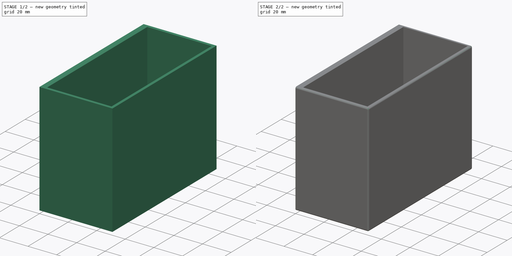
[diagram: build sequence overview — one tinted view per stage of 2, left to right]
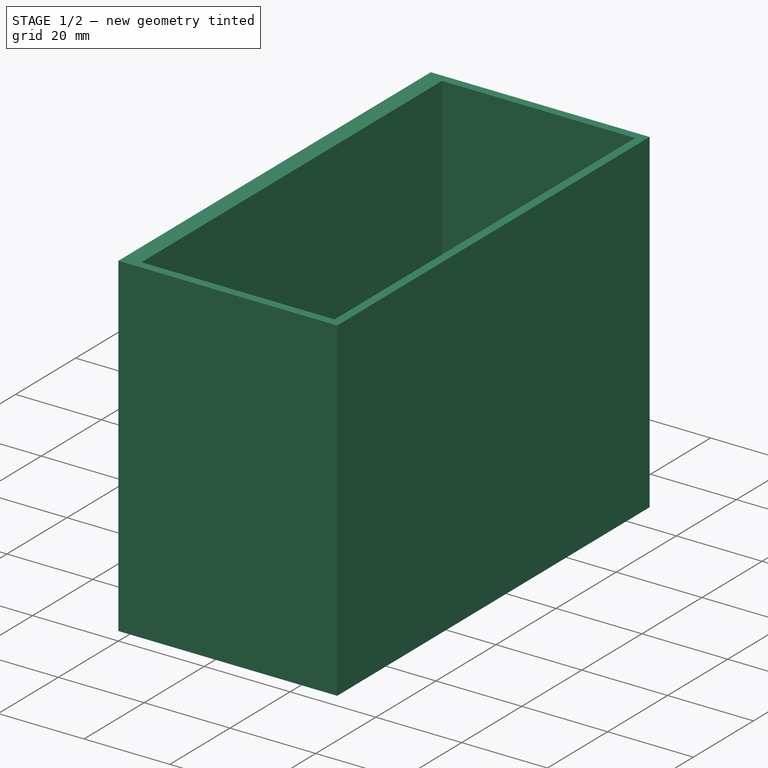
[diagram: stage 1 of 2 — iso view after this stage's code; geometry added in this stage tinted green]
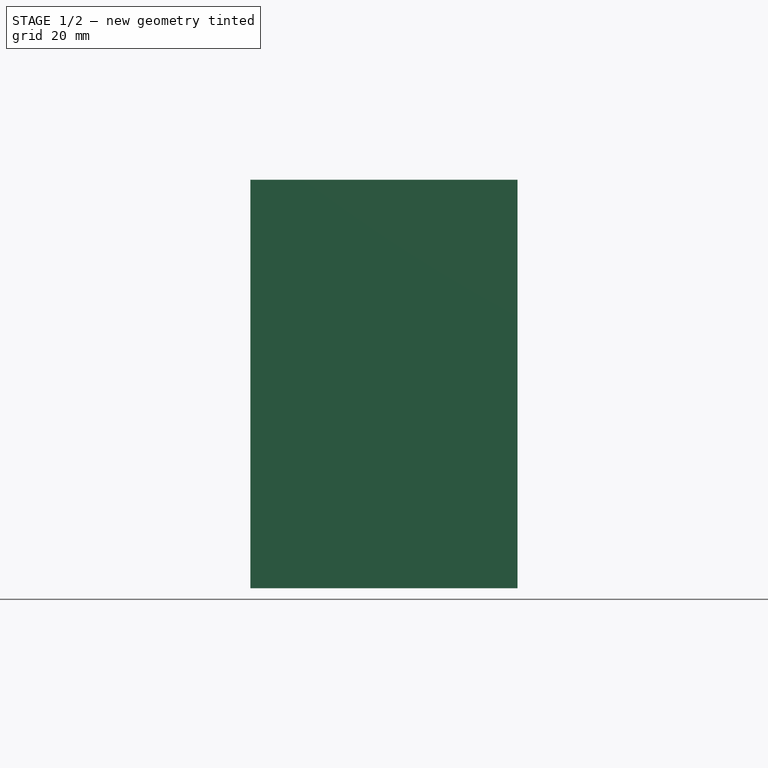
[diagram: stage 1 of 2 — front view after this stage's code; geometry added in this stage tinted green]
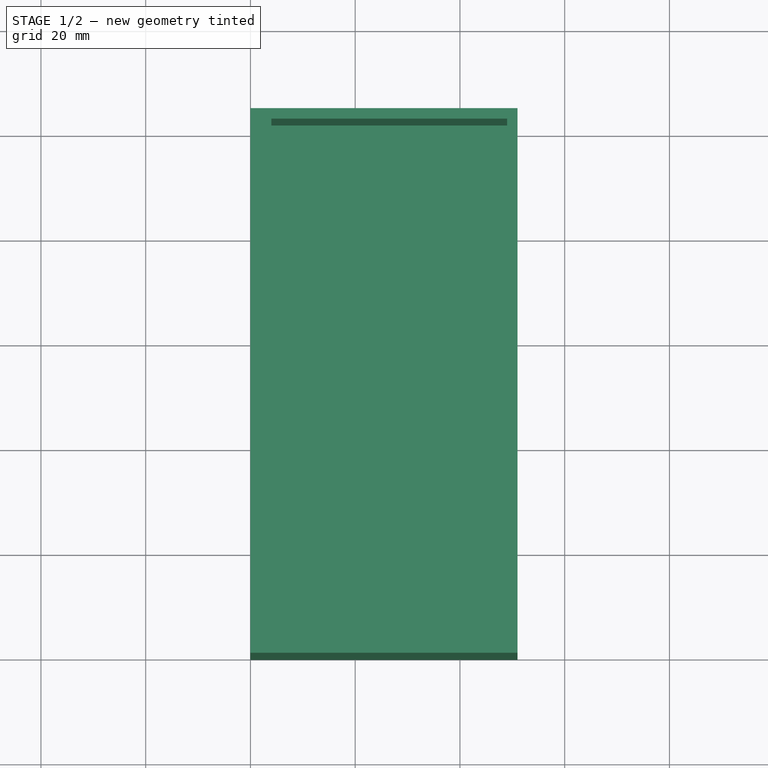
[diagram: stage 1 of 2 — top view after this stage's code; geometry added in this stage tinted green]
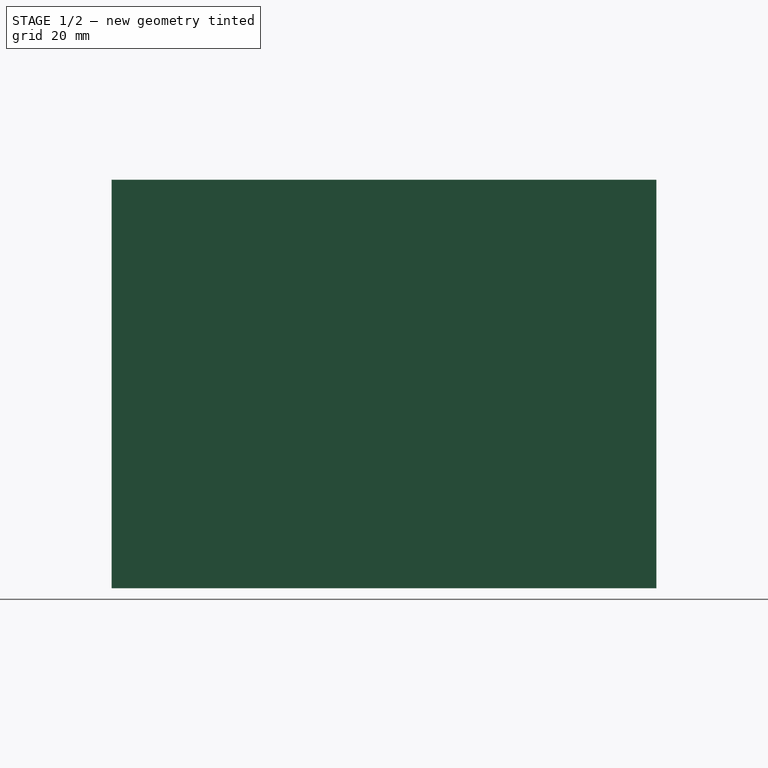
[diagram: stage 1 of 2 — right view after this stage's code; geometry added in this stage tinted green]
FCSTD DOCUMENT  (FreeCAD 0.18R)
Label: whiteboard_marker
License: All rights reserved
LicenseURL: http://en.wikipedia.org/wiki/All_rights_reserved
objects: Sketcher::SketchObject×3, PartDesign::Pocket×2, PartDesign::Pad×1, PartDesign::Fillet×1, PartDesign::Body×1
note: 11 computed .brp shape members not serialized (recipe doc carries the construction recipe); baked Part::Feature solids carry a one-line shape summary decoded from their .brp

FEATURE [Sketcher::SketchObject] Sketch
  MapMode = 5
  Support = -> [XY_Plane]
  sketch-geometry (4):
    g0: LineSegment StartX=0 StartY=104 StartZ=0 EndX=51 EndY=104 EndZ=0
    g1: LineSegment StartX=51 StartY=104 StartZ=0 EndX=51 EndY=0 EndZ=0
    g2: LineSegment StartX=51 StartY=0 StartZ=0 EndX=0 EndY=0 EndZ=0
    g3: LineSegment StartX=0 StartY=0 StartZ=0 EndX=0 EndY=104 EndZ=0
  constraints (11):
    c: Coincident(g0,g1)
    c: Coincident(g1,g2)
    c: Coincident(g2,g3)
    c: Coincident(g3,g0)
    c: Horizontal(g0)
    c: Horizontal(g2)
    c: Vertical(g1)
    c: Vertical(g3)
    c: DistanceX(g0,g0) = 51
    c: DistanceY(g1,g1) = 104
    c: Coincident(g-1,g2)
FEATURE [PartDesign::Pad] Pad
  Length = 78
  Length2 = 100
  Profile = -> Sketch
  Refine = true
  Type = 0
FEATURE [Sketcher::SketchObject] Sketch001
  MapMode = 5
  Placement = pos=(0,0,78) rot=(0,0,1;0rad)
  Support = -> [Pad]
  sketch-geometry (4):
    g0: LineSegment StartX=4 StartY=102 StartZ=0 EndX=49 EndY=102 EndZ=0
    g1: LineSegment StartX=49 StartY=102 StartZ=0 EndX=49 EndY=2 EndZ=0
    g2: LineSegment StartX=49 StartY=2 StartZ=0 EndX=4 EndY=2 EndZ=0
    g3: LineSegment StartX=4 StartY=2 StartZ=0 EndX=4 EndY=102 EndZ=0
  constraints (12):
    c: Coincident(g0,g1)
    c: Coincident(g1,g2)
    c: Coincident(g2,g3)
    c: Coincident(g3,g0)
    c: Horizontal(g0)
    c: Horizontal(g2)
    c: Vertical(g1)
    c: Vertical(g3)
    c: DistanceX(g-1,g2) = 4
    c: DistanceY(g-1,g2) = 2
    c: DistanceX(g0,g0) = 45
    c: DistanceY(g1,g1) = 100
FEATURE [PartDesign::Pocket] Pocket
  BaseFeature = -> Pad
  Length = 75
  Length2 = 100
  Profile = -> Sketch001
  Refine = true
  Type = 0
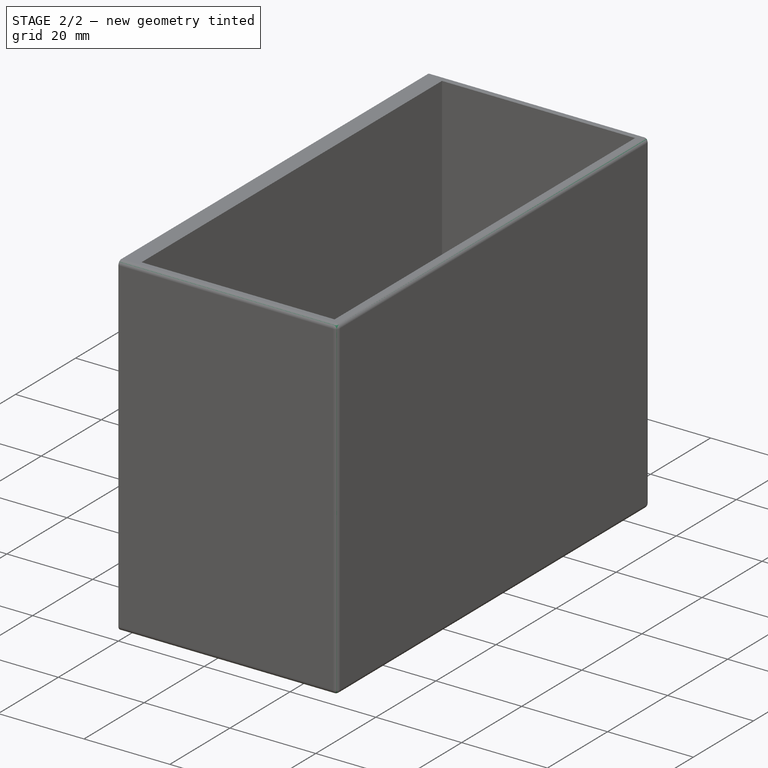
[diagram: stage 2 of 2 — iso view after this stage's code; geometry added in this stage tinted green]
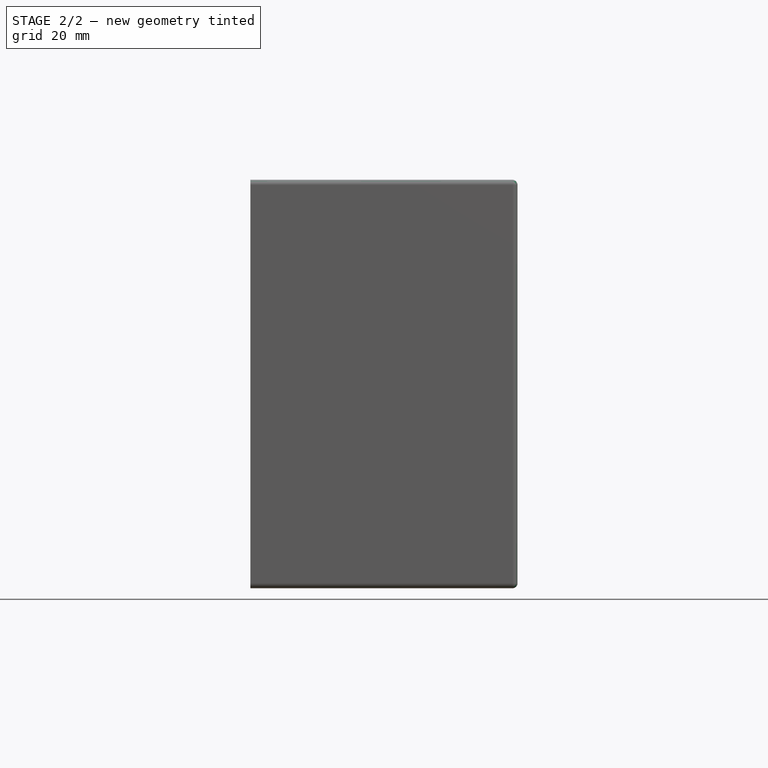
[diagram: stage 2 of 2 — front view after this stage's code; geometry added in this stage tinted green]
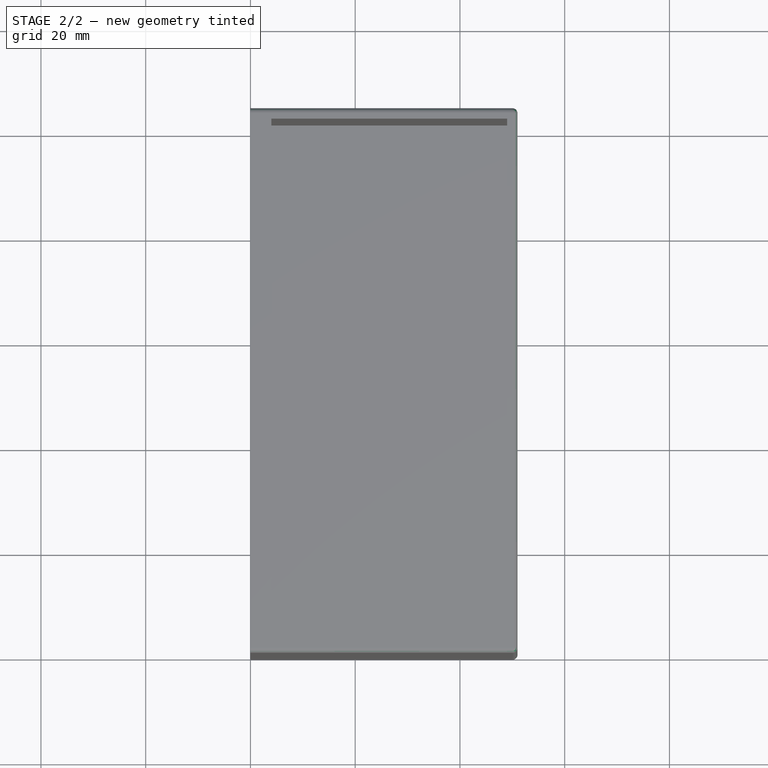
[diagram: stage 2 of 2 — top view after this stage's code; geometry added in this stage tinted green]
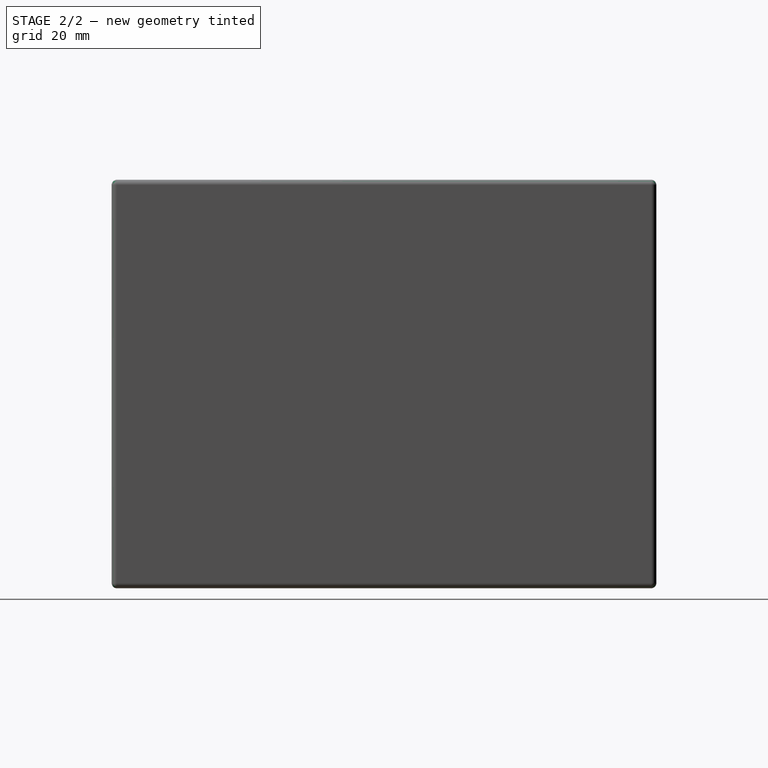
[diagram: stage 2 of 2 — right view after this stage's code; geometry added in this stage tinted green]
FEATURE [PartDesign::Fillet] Fillet
  Base = -> Pocket [Edge8,Edge2,Edge9,Edge11,Edge10,Edge12,Edge4,Edge3]
  BaseFeature = -> Pocket
  Radius = 1
FEATURE [Sketcher::SketchObject] Sketch002
  MapMode = 5
  Placement = pos=(0,0,0) rot=(0.57735,-0.57735,-0.57735;2.0944rad)
  Support = -> [Fillet]
  sketch-geometry (24):
    g0: LineSegment StartX=-94.5 StartY=63 StartZ=0 EndX=-74 EndY=63 EndZ=0
    g1: LineSegment StartX=-74 StartY=63 StartZ=0 EndX=-74 EndY=56.5 EndZ=0
    g2: LineSegment StartX=-74 StartY=56.5 StartZ=0 EndX=-94.5 EndY=56.5 EndZ=0
    g3: LineSegment StartX=-94.5 StartY=56.5 StartZ=0 EndX=-94.5 EndY=63 EndZ=0
    g4: LineSegment StartX=-94.5 StartY=26.5 StartZ=0 EndX=-74 EndY=26.5 EndZ=0
    g5: LineSegment StartX=-74 StartY=26.5 StartZ=0 EndX=-74 EndY=20 EndZ=0
    g6: LineSegment StartX=-74 StartY=20 StartZ=0 EndX=-94.5 EndY=20 EndZ=0
    g7: LineSegment StartX=-94.5 StartY=20 StartZ=0 EndX=-94.5 EndY=26.5 EndZ=0
    g8: LineSegment StartX=-31.5 StartY=63 StartZ=0 EndX=-11 EndY=63 EndZ=0
    g9: LineSegment StartX=-11 StartY=63 StartZ=0 EndX=-11 EndY=56.5 EndZ=0
    g10: LineSegment StartX=-11 StartY=56.5 StartZ=0 EndX=-31.5 EndY=56.5 EndZ=0
    g11: LineSegment StartX=-31.5 StartY=56.5 StartZ=0 EndX=-31.5 EndY=63 EndZ=0
    g12: LineSegment StartX=-31.5 StartY=26.5 StartZ=0 EndX=-11 EndY=26.5 EndZ=0
    g13: LineSegment StartX=-11 StartY=26.5 StartZ=0 EndX=-11 EndY=20 EndZ=0
    g14: LineSegment StartX=-11 StartY=20 StartZ=0 EndX=-31.5 EndY=20 EndZ=0
    g15: LineSegment StartX=-31.5 StartY=20 StartZ=0 EndX=-31.5 EndY=26.5 EndZ=0
    g16: LineSegment StartX=-63.5265 StartY=63 StartZ=0 EndX=-43.0265 EndY=63 EndZ=0
    g17: LineSegment StartX=-43.0265 StartY=63 StartZ=0 EndX=-43.0265 EndY=56.5 EndZ=0
    g18: LineSegment StartX=-43.0265 StartY=56.5 StartZ=0 EndX=-63.5265 EndY=56.5 EndZ=0
    g19: LineSegment StartX=-63.5265 StartY=56.5 StartZ=0 EndX=-63.5265 EndY=63 EndZ=0
    g20: LineSegment StartX=-63 StartY=26.5 StartZ=0 EndX=-42.5 EndY=26.5 EndZ=0
    g21: LineSegment StartX=-42.5 StartY=26.5 StartZ=0 EndX=-42.5 EndY=20 EndZ=0
    g22: LineSegment StartX=-42.5 StartY=20 StartZ=0 EndX=-63 EndY=20 EndZ=0
    g23: LineSegment StartX=-63 StartY=20 StartZ=0 EndX=-63 EndY=26.5 EndZ=0
  constraints (71):
    c: Coincident(g0,g1)
    c: Coincident(g1,g2)
    c: Coincident(g2,g3)
    c: Coincident(g3,g0)
    c: Horizontal(g0)
    c: Horizontal(g2)
    c: Vertical(g1)
    c: Vertical(g3)
    c: Coincident(g4,g5)
    c: Coincident(g5,g6)
    c: Coincident(g6,g7)
    c: Coincident(g7,g4)
    c: Horizontal(g4)
    c: Horizontal(g6)
    c: Vertical(g5)
    c: Vertical(g7)
    c: Coincident(g8,g9)
    c: Coincident(g9,g10)
    c: Coincident(g10,g11)
    c: Coincident(g11,g8)
    c: Horizontal(g8)
    c: Horizontal(g10)
    c: Vertical(g9)
    c: Vertical(g11)
    c: Coincident(g12,g13)
    c: Coincident(g13,g14)
    c: Coincident(g14,g15)
    c: Coincident(g15,g12)
    c: Horizontal(g12)
    c: Horizontal(g14)
    c: Vertical(g13)
    c: Vertical(g15)
    c: Equal(g2,g10)
    c: Equal(g10,g4)
    c: Equal(g4,g12)
    c: Equal(g1,g5)
    c: Equal(g5,g15)
    c: Equal(g15,g11)
    c: Horizontal(g1,g10)
    c: Horizontal(g4,g12)
    c: Vertical(g1,g4)
    c: Vertical(g10,g12)
    c: DistanceX(g0,g0) = 20.5
    c: DistanceY(g3,g3) = 6.5
    c: DistanceY(g12,g9) = 30
    c: DistanceY(g-1,g13) = 20
    c: Coincident(g16,g17)
    c: Coincident(g17,g18)
    c: Coincident(g18,g19)
    c: Coincident(g19,g16)
    c: Horizontal(g16)
    c: Horizontal(g18)
    c: Vertical(g17)
    c: Vertical(g19)
    c: Coincident(g20,g21)
    c: Coincident(g21,g22)
    c: Coincident(g22,g23)
    c: Coincident(g23,g20)
    c: Horizontal(g20)
    c: Horizontal(g22)
    c: Vertical(g21)
    c: Vertical(g23)
    c: Equal(g2,g18)
    c: Equal(g6,g22)
    c: Equal(g1,g19)
    c: Equal(g5,g23)
    c: Horizontal(g1,g18)
    c: Horizontal(g5,g22)
    c: DistanceX(g13,g-1) = 11
    c: DistanceX(g21,g14) = 11
    c: DistanceX(g5,g22) = 11
FEATURE [PartDesign::Pocket] Pocket001
  BaseFeature = -> Fillet
  Length = 4
  Length2 = 100
  Midplane = true
  Profile = -> Sketch002
  Refine = true
  Type = 0
FEATURE [PartDesign::Body] Body
  Group = -> [Sketch,Pad,Sketch001,Pocket,Fillet,Sketch002,Pocket001]
  Origin = -> Origin
  Tip = -> Pocket001
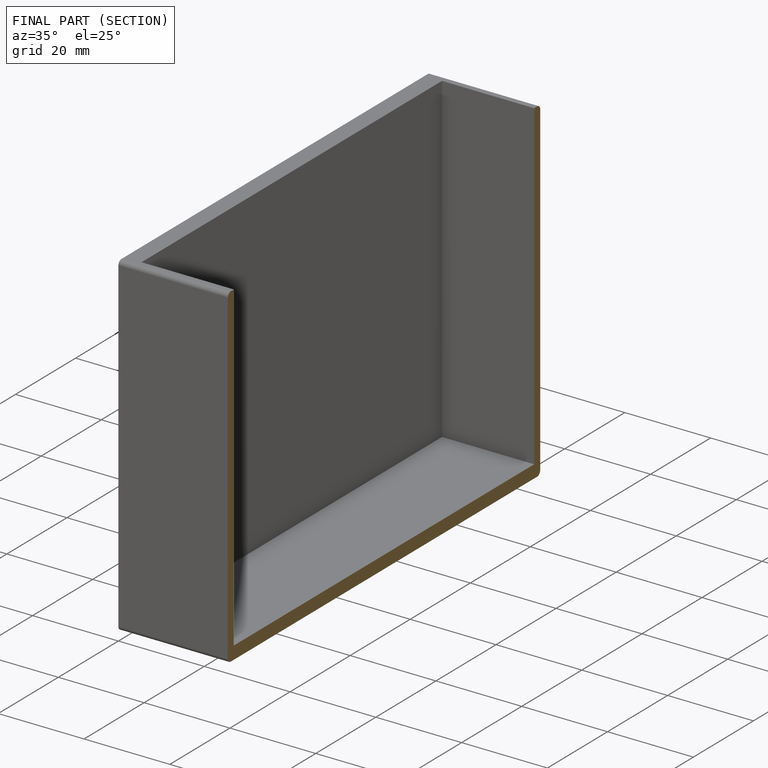
[diagram: finished part — half-section view (interior)]
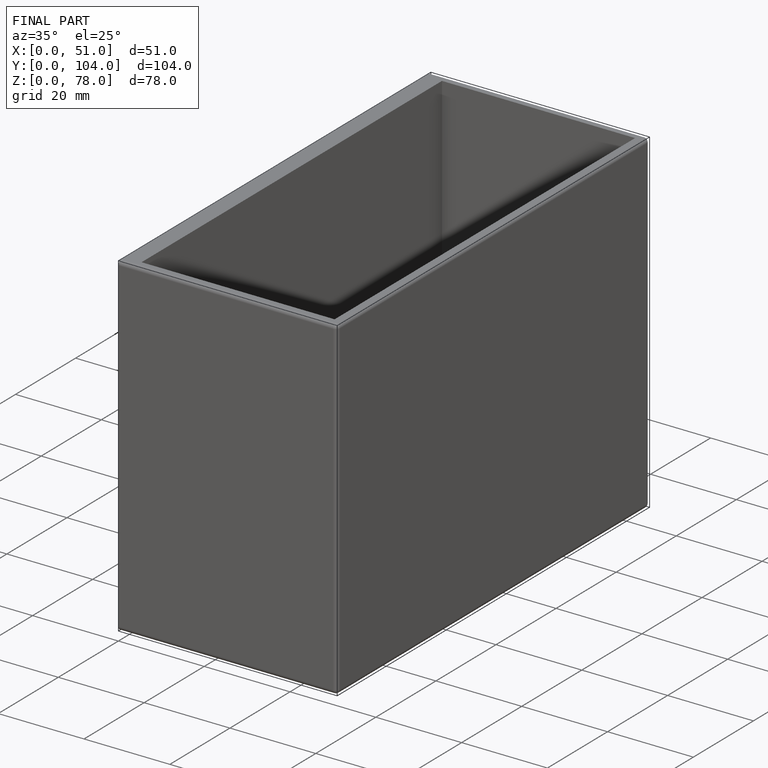
[diagram: finished part — iso view with bounding-box wireframe]
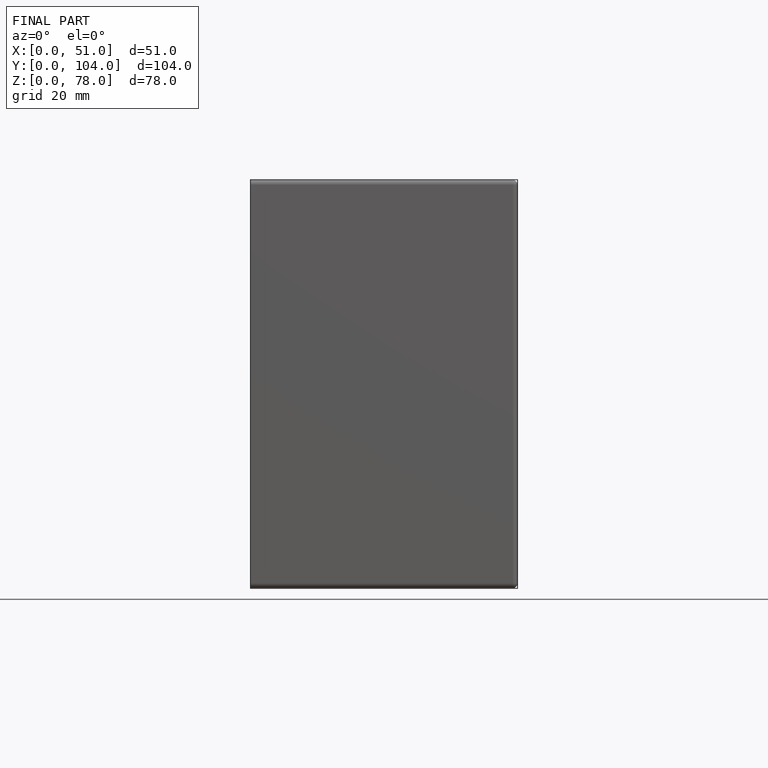
[diagram: finished part — front view with bounding-box wireframe]
